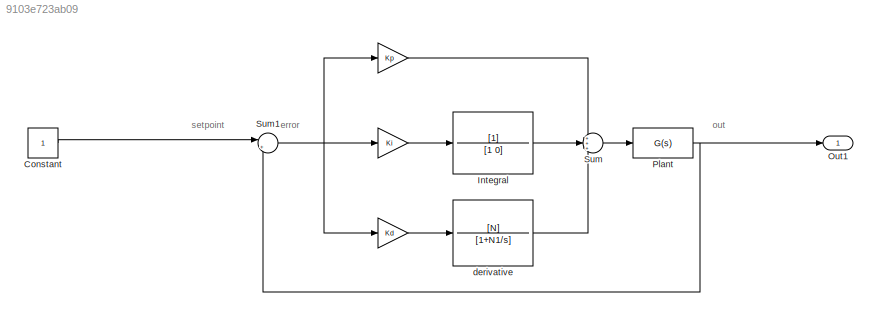
MODEL slx_9103e723ab09
KIND model
CONFIG AbsTol = auto
CONFIG EnableMultiTasking = off
CONFIG FixedStep = auto
CONFIG MaxStep = auto
CONFIG MinStep = auto
CONFIG RelTol = 1e-3
CONFIG SampleTimeConstraint = Unconstrained
CONFIG Solver = VariableStepAuto
CONFIG SolverName = VariableStepAuto
CONFIG StartTime = 0.0
CONFIG StopTime = 10.0
BLOCK [Gain]  
  Gain = Kd
  OutDataTypeStr = Inherit: Inherit via internal rule
  ParamDataTypeStr = Inherit: Inherit via internal rule
  SaturateOnIntegerOverflow = off
BLOCK [Constant] Constant
BLOCK [TransferFcn] Integral
  Denominator = [1 0]
BLOCK [Outport] Out1
  IconDisplay = Port number
BLOCK [Fcn] Plant
  Expr = G(s)
BLOCK [Sum] Sum
  IconShape = round
  InputSameDT = off
  Inputs = +++
  OutDataTypeStr = Inherit: Inherit via internal rule
  Ports = [3, 1]
  SaturateOnIntegerOverflow = off
BLOCK [Sum] Sum1
  IconShape = round
  InputSameDT = off
  Inputs = |+-
  OutDataTypeStr = Inherit: Inherit via internal rule
  Ports = [2, 1]
  SaturateOnIntegerOverflow = off
BLOCK [TransferFcn] derivative
  Denominator = [1+N1/s]
  Numerator = [N]
ANNOTATION (root): error
ANNOTATION (root): out
ANNOTATION (root): setpoint
NET  :1 -> Integral:1, Sum:1, derivative:1
LINE Constant:1 -> Sum1:1
LINE Integral:1 -> Sum:2
NET Plant:1 -> Out1:1, Sum1:2
LINE Sum1:1 ->  :1
LINE Sum:1 -> Plant:1
LINE derivative:1 -> Sum:3
note: NET lines group one-source signal fan-out (src -> all destinations, sorted); 1:1 wires keep LINE
